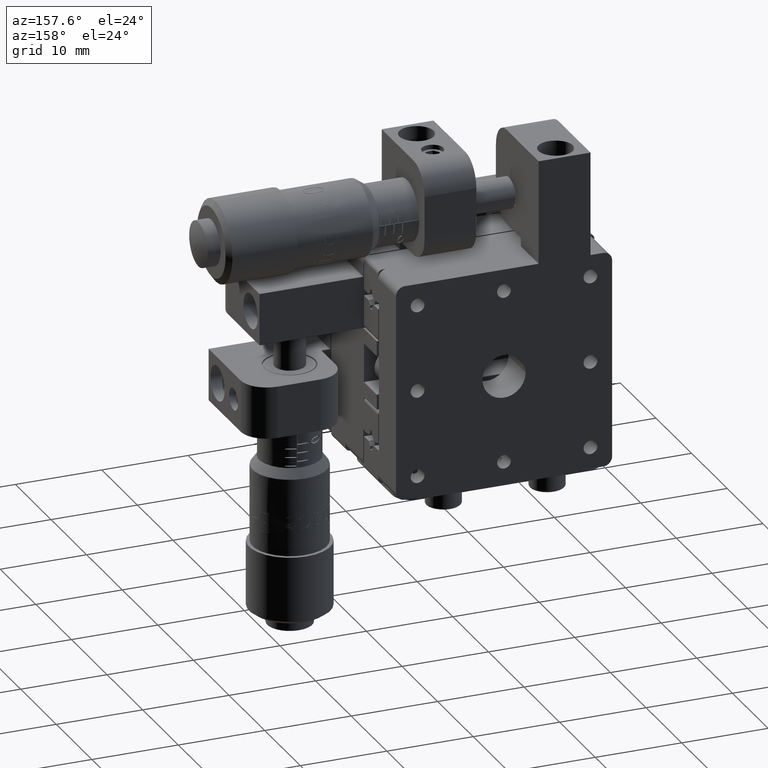
[diagram: clean part render]
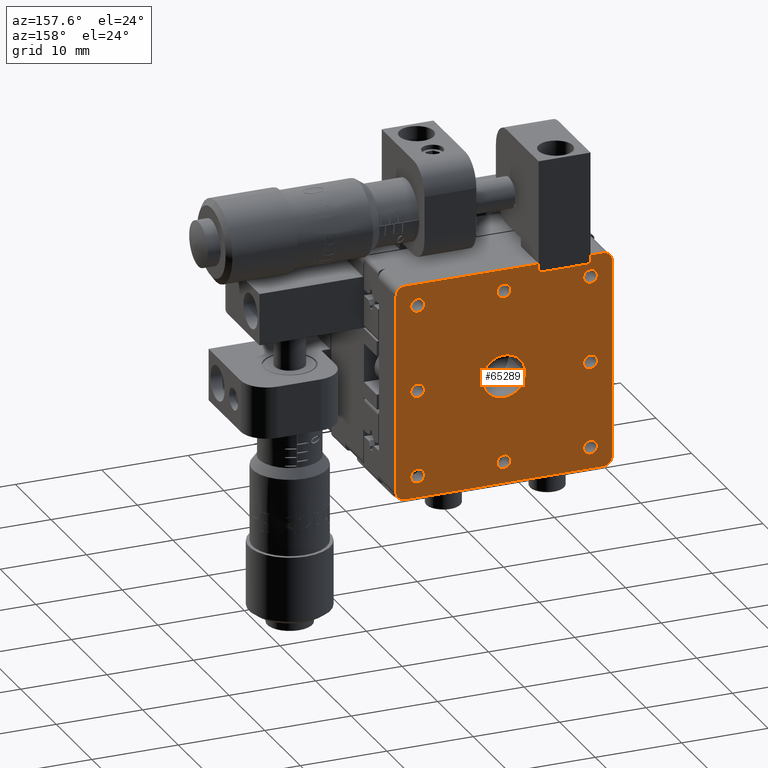
[diagram: same view with one face highlighted and labeled with its STEP entity id]
A machine part, auxiliary view. The second image highlights one B-rep face of the part: STEP entity #65289.
In plain terms, the highlighted planar face has unit normal (-0, -1, 0).
Its self-contained STEP definition (entity closure, byte-faithful):
#480 = EDGE_CURVE ( 'NONE', #8379, #82890, #28067, .T. ) ;
#663 = ORIENTED_EDGE ( 'NONE', *, *, #17756, .F. ) ;
#692 = ORIENTED_EDGE ( 'NONE', *, *, #45937, .T. ) ;
#1203 = VERTEX_POINT ( 'NONE', #20748 ) ;
#1381 = AXIS2_PLACEMENT_3D ( 'NONE', #19761, #49989, #72321 ) ;
#1960 = DIRECTION ( 'NONE',  ( 1.266761830690952200E-015, 1.000000000000000000, -5.856618871675886000E-016 ) ) ;
#2102 = EDGE_LOOP ( 'NONE', ( #3716, #4682 ) ) ;
#3153 = VERTEX_POINT ( 'NONE', #63412 ) ;
#3515 = FACE_BOUND ( 'NONE', #36954, .T. ) ;
#3716 = ORIENTED_EDGE ( 'NONE', *, *, #68880, .F. ) ;
#4682 = ORIENTED_EDGE ( 'NONE', *, *, #85844, .F. ) ;
#4760 = DIRECTION ( 'NONE',  ( -1.000000000000000000, 1.387778780781452200E-015, 3.330669073875463200E-016 ) ) ;
#5382 = DIRECTION ( 'NONE',  ( 1.266761830690952200E-015, 1.000000000000000000, -4.468840090894440300E-016 ) ) ;
#5793 = AXIS2_PLACEMENT_3D ( 'NONE', #29130, #21359, #87868 ) ;
#5966 = VERTEX_POINT ( 'NONE', #18501 ) ;
#6098 = VERTEX_POINT ( 'NONE', #78836 ) ;
#6133 = CARTESIAN_POINT ( 'NONE',  ( 2.500000000000056400, 14.39999999999997500, -3.431156557733987300E-014 ) ) ;
#6304 = DIRECTION ( 'NONE',  ( -1.000000000000000000, 2.168404344971007700E-015, 0.0000000000000000000 ) ) ;
#6903 = EDGE_CURVE ( 'NONE', #30957, #19025, #8308, .T. ) ;
#7017 = VERTEX_POINT ( 'NONE', #25409 ) ;
#7456 = VECTOR ( 'NONE', #35471, 1000.000000000000000 ) ;
#8308 = CIRCLE ( 'NONE', #43811, 0.8000000000000003800 ) ;
#8326 = EDGE_LOOP ( 'NONE', ( #36783, #29440 ) ) ;
#8379 = VERTEX_POINT ( 'NONE', #74443 ) ;
#9285 = FACE_OUTER_BOUND ( 'NONE', #31082, .T. ) ;
#9482 = EDGE_CURVE ( 'NONE', #19025, #30957, #34365, .T. ) ;
#10459 = ORIENTED_EDGE ( 'NONE', *, *, #52704, .F. ) ;
#10601 = VECTOR ( 'NONE', #30472, 1000.000000000000000 ) ;
#12011 = DIRECTION ( 'NONE',  ( -1.000000000000000000, 2.168404344971007700E-015, 3.330669073875486400E-016 ) ) ;
#12104 = CARTESIAN_POINT ( 'NONE',  ( 7.154970399973311100E-014, 14.39999999999998300, 9.999999999999964500 ) ) ;
#12774 = CARTESIAN_POINT ( 'NONE',  ( -0.7999999999999287700, 14.39999999999998400, 9.999999999999964500 ) ) ;
#12903 = CARTESIAN_POINT ( 'NONE',  ( 6.488836585198218400E-014, 14.39999999999997200, -10.00000000000003700 ) ) ;
#12938 = CARTESIAN_POINT ( 'NONE',  ( -12.49999999999993400, 14.39999999999998600, -11.50000000000004600 ) ) ;
#13453 = DIRECTION ( 'NONE',  ( 1.266761830690952200E-015, 1.000000000000000000, -5.856618871675886000E-016 ) ) ;
#13845 = CIRCLE ( 'NONE', #54011, 0.8000000000000003800 ) ;
#14268 = CARTESIAN_POINT ( 'NONE',  ( 7.154970399973311100E-014, 14.39999999999998300, 9.999999999999964500 ) ) ;
#14613 = ORIENTED_EDGE ( 'NONE', *, *, #16956, .T. ) ;
#14866 = LINE ( 'NONE', #46117, #81086 ) ;
#15363 = CARTESIAN_POINT ( 'NONE',  ( 0.8000000000000652100, 14.39999999999997000, -10.00000000000003700 ) ) ;
#16043 = AXIS2_PLACEMENT_3D ( 'NONE', #91599, #1960, #90945 ) ;
#16646 = CARTESIAN_POINT ( 'NONE',  ( -0.7999999999999355400, 14.39999999999997400, -10.00000000000003700 ) ) ;
#16956 = EDGE_CURVE ( 'NONE', #60566, #65199, #14866, .T. ) ;
#17121 = CARTESIAN_POINT ( 'NONE',  ( 12.50000000000007300, 14.39999999999996800, 12.49999999999995900 ) ) ;
#17696 = DIRECTION ( 'NONE',  ( -1.000000000000000000, 2.168404344971007700E-015, 0.0000000000000000000 ) ) ;
#17756 = EDGE_CURVE ( 'NONE', #5966, #39799, #29583, .T. ) ;
#17791 = CARTESIAN_POINT ( 'NONE',  ( 10.80000000000006800, 14.39999999999996300, -3.901893434048831100E-014 ) ) ;
#18007 = AXIS2_PLACEMENT_3D ( 'NONE', #35137, #64586, #56873 ) ;
#18367 = EDGE_CURVE ( 'NONE', #54488, #7017, #94529, .T. ) ;
#18501 = CARTESIAN_POINT ( 'NONE',  ( 9.200000000000063200, 14.39999999999996100, -10.00000000000004100 ) ) ;
#18522 = CIRCLE ( 'NONE', #62085, 0.8000000000000003800 ) ;
#18634 = FACE_BOUND ( 'NONE', #2102, .T. ) ;
#18726 = CIRCLE ( 'NONE', #20964, 0.8000000000000003800 ) ;
#19025 = VERTEX_POINT ( 'NONE', #22961 ) ;
#19128 = CARTESIAN_POINT ( 'NONE',  ( 10.00000000000007100, 14.39999999999995800, 9.999999999999960900 ) ) ;
#19405 = CARTESIAN_POINT ( 'NONE',  ( 10.00000000000007100, 14.39999999999995800, 9.999999999999960900 ) ) ;
#19761 = CARTESIAN_POINT ( 'NONE',  ( -12.49999999999992700, 14.40000000000000400, 12.49999999999995400 ) ) ;
#20237 = VERTEX_POINT ( 'NONE', #20636 ) ;
#20557 = ORIENTED_EDGE ( 'NONE', *, *, #40847, .T. ) ;
#20636 = CARTESIAN_POINT ( 'NONE',  ( -10.79999999999993300, 14.39999999999999100, -3.299518250666380900E-014 ) ) ;
#20668 = CARTESIAN_POINT ( 'NONE',  ( 10.00000000000006400, 14.39999999999995900, -10.00000000000004100 ) ) ;
#20748 = CARTESIAN_POINT ( 'NONE',  ( -9.199999999999928200, 14.39999999999999500, 9.999999999999968000 ) ) ;
#20964 = AXIS2_PLACEMENT_3D ( 'NONE', #40525, #24638, #84024 ) ;
#20988 = DIRECTION ( 'NONE',  ( -1.000000000000000000, 2.168404344971007700E-015, 0.0000000000000000000 ) ) ;
#21336 = DIRECTION ( 'NONE',  ( 3.330669073875468100E-016, 4.468840090894436400E-016, 1.000000000000000000 ) ) ;
#21359 = DIRECTION ( 'NONE',  ( 1.266761830690952200E-015, 1.000000000000000000, -4.468840090894440300E-016 ) ) ;
#21369 = CARTESIAN_POINT ( 'NONE',  ( -9.999999999999928900, 14.39999999999999700, 9.999999999999968000 ) ) ;
#21616 = EDGE_CURVE ( 'NONE', #51910, #3153, #18726, .T. ) ;
#22191 = ORIENTED_EDGE ( 'NONE', *, *, #69908, .F. ) ;
#22764 = DIRECTION ( 'NONE',  ( 1.000000000000000000, -1.266761830690952400E-015, -3.330669073875462700E-016 ) ) ;
#22961 = CARTESIAN_POINT ( 'NONE',  ( 9.200000000000066800, 14.39999999999996700, -3.965652065441469800E-014 ) ) ;
#23878 = EDGE_CURVE ( 'NONE', #3153, #51910, #78786, .T. ) ;
#23930 = CIRCLE ( 'NONE', #57553, 0.8000000000000003800 ) ;
#24115 = VECTOR ( 'NONE', #21336, 1000.000000000000000 ) ;
#24638 = DIRECTION ( 'NONE',  ( 1.266761830690952200E-015, 1.000000000000000000, -4.468840090894440300E-016 ) ) ;
#24728 = EDGE_CURVE ( 'NONE', #90388, #69052, #34585, .T. ) ;
#25409 = CARTESIAN_POINT ( 'NONE',  ( -2.499999999999920100, 14.39999999999998300, -3.402491436200364500E-014 ) ) ;
#25646 = CARTESIAN_POINT ( 'NONE',  ( 11.50000000000007300, 14.39999999999997000, 12.49999999999995900 ) ) ;
#25987 = EDGE_CURVE ( 'NONE', #36078, #92932, #72660, .T. ) ;
#26100 = VERTEX_POINT ( 'NONE', #72772 ) ;
#27092 = ORIENTED_EDGE ( 'NONE', *, *, #62847, .T. ) ;
#27602 = CARTESIAN_POINT ( 'NONE',  ( -11.49999999999993400, 14.39999999999998600, -11.50000000000003400 ) ) ;
#27929 = DIRECTION ( 'NONE',  ( 1.266761830690952200E-015, 1.000000000000000000, -5.856618871675886000E-016 ) ) ;
#28067 = LINE ( 'NONE', #36060, #64067 ) ;
#28696 = EDGE_CURVE ( 'NONE', #65199, #37930, #54715, .T. ) ;
#29130 = CARTESIAN_POINT ( 'NONE',  ( -9.999999999999936100, 14.39999999999999700, -10.00000000000003400 ) ) ;
#29440 = ORIENTED_EDGE ( 'NONE', *, *, #80627, .F. ) ;
#29583 = CIRCLE ( 'NONE', #41282, 0.8000000000000003800 ) ;
#29910 = DIRECTION ( 'NONE',  ( 1.266761830690952200E-015, 1.000000000000000000, -4.468840090894440300E-016 ) ) ;
#30472 = DIRECTION ( 'NONE',  ( -3.330669073875470100E-016, -5.856618871675882000E-016, -1.000000000000000000 ) ) ;
#30884 = DIRECTION ( 'NONE',  ( 3.330669073875468100E-016, 4.468840090894436400E-016, 1.000000000000000000 ) ) ;
#30957 = VERTEX_POINT ( 'NONE', #17791 ) ;
#31082 = EDGE_LOOP ( 'NONE', ( #87473, #45806, #58543, #20557, #14613, #83478, #61650, #55159, #71854, #692, #72775, #27092 ) ) ;
#31387 = FACE_BOUND ( 'NONE', #36688, .T. ) ;
#31476 = CIRCLE ( 'NONE', #46216, 0.8000000000000003800 ) ;
#31499 = CARTESIAN_POINT ( 'NONE',  ( 12.50000000000007300, 14.39999999999996800, 11.49999999999995700 ) ) ;
#31979 = AXIS2_PLACEMENT_3D ( 'NONE', #19405, #41845, #71986 ) ;
#32055 = LINE ( 'NONE', #94820, #44809 ) ;
#32580 = DIRECTION ( 'NONE',  ( -1.000000000000000000, 2.168404344971007700E-015, 3.330669073875486400E-016 ) ) ;
#33157 = CARTESIAN_POINT ( 'NONE',  ( -9.999999999999928900, 14.39999999999999700, 11.49999999999996400 ) ) ;
#33775 = VERTEX_POINT ( 'NONE', #67718 ) ;
#33898 = CARTESIAN_POINT ( 'NONE',  ( -12.49999999999992700, 14.40000000000000400, 12.49999999999995400 ) ) ;
#34098 = CARTESIAN_POINT ( 'NONE',  ( -9.999999999999932500, 14.39999999999999000, -3.326163603257385000E-014 ) ) ;
#34312 = CARTESIAN_POINT ( 'NONE',  ( 6.821903492585765400E-014, 14.39999999999997900, -3.485758163047250600E-014 ) ) ;
#34365 = CIRCLE ( 'NONE', #71811, 0.8000000000000003800 ) ;
#34383 = PLANE ( 'NONE',  #1381 ) ;
#34585 = LINE ( 'NONE', #95975, #24115 ) ;
#34673 = CARTESIAN_POINT ( 'NONE',  ( 10.80000000000006500, 14.39999999999995800, -10.00000000000004100 ) ) ;
#35137 = CARTESIAN_POINT ( 'NONE',  ( 11.50000000000006600, 14.39999999999995400, -11.50000000000004100 ) ) ;
#35281 = EDGE_CURVE ( 'NONE', #6098, #90388, #85353, .T. ) ;
#35471 = DIRECTION ( 'NONE',  ( -1.000000000000000000, 1.266761830690952400E-015, 3.330669073875462700E-016 ) ) ;
#36060 = CARTESIAN_POINT ( 'NONE',  ( -12.49999999999992700, 14.40000000000000400, 12.49999999999995400 ) ) ;
#36078 = VERTEX_POINT ( 'NONE', #16646 ) ;
#36688 = EDGE_LOOP ( 'NONE', ( #57073, #10459 ) ) ;
#36783 = ORIENTED_EDGE ( 'NONE', *, *, #46662, .F. ) ;
#36846 = CARTESIAN_POINT ( 'NONE',  ( 10.00000000000006400, 14.39999999999995900, -10.00000000000004100 ) ) ;
#36954 = EDGE_LOOP ( 'NONE', ( #663, #91907 ) ) ;
#37337 = DIRECTION ( 'NONE',  ( 1.266761830690952200E-015, 1.000000000000000000, -4.468840090894440300E-016 ) ) ;
#37550 = CIRCLE ( 'NONE', #38251, 0.8000000000000003800 ) ;
#37868 = LINE ( 'NONE', #53931, #79677 ) ;
#37930 = VERTEX_POINT ( 'NONE', #31499 ) ;
#38251 = AXIS2_PLACEMENT_3D ( 'NONE', #14268, #37337, #66489 ) ;
#38750 = CARTESIAN_POINT ( 'NONE',  ( 10.00000000000006800, 14.39999999999996500, -3.992297418032473900E-014 ) ) ;
#39208 = CARTESIAN_POINT ( 'NONE',  ( -9.199999999999931800, 14.39999999999998800, -3.235759619273742900E-014 ) ) ;
#39799 = VERTEX_POINT ( 'NONE', #34673 ) ;
#40525 = CARTESIAN_POINT ( 'NONE',  ( -9.999999999999936100, 14.39999999999999700, -10.00000000000003400 ) ) ;
#40710 = ORIENTED_EDGE ( 'NONE', *, *, #21616, .F. ) ;
#40847 = EDGE_CURVE ( 'NONE', #6098, #60566, #37868, .T. ) ;
#41282 = AXIS2_PLACEMENT_3D ( 'NONE', #20668, #94676, #79719 ) ;
#41665 = DIRECTION ( 'NONE',  ( 1.266761830690952200E-015, 1.000000000000000000, -4.468840090894440300E-016 ) ) ;
#41845 = DIRECTION ( 'NONE',  ( 1.266761830690952200E-015, 1.000000000000000000, -4.468840090894440300E-016 ) ) ;
#43099 = AXIS2_PLACEMENT_3D ( 'NONE', #27602, #27929, #49707 ) ;
#43811 = AXIS2_PLACEMENT_3D ( 'NONE', #38750, #47510, #32580 ) ;
#44809 = VECTOR ( 'NONE', #95155, 1000.000000000000000 ) ;
#45358 = DIRECTION ( 'NONE',  ( 1.266761830690952200E-015, 1.000000000000000000, -4.468840090894440300E-016 ) ) ;
#45806 = ORIENTED_EDGE ( 'NONE', *, *, #24728, .F. ) ;
#45937 = EDGE_CURVE ( 'NONE', #26100, #82890, #76826, .T. ) ;
#46117 = CARTESIAN_POINT ( 'NONE',  ( -12.49999999999992700, 14.40000000000000400, 12.49999999999995400 ) ) ;
#46138 = EDGE_CURVE ( 'NONE', #37930, #65127, #90814, .T. ) ;
#46216 = AXIS2_PLACEMENT_3D ( 'NONE', #53616, #85065, #48391 ) ;
#46662 = EDGE_CURVE ( 'NONE', #20237, #55340, #31476, .T. ) ;
#46739 = EDGE_LOOP ( 'NONE', ( #40710, #56673 ) ) ;
#46761 = CARTESIAN_POINT ( 'NONE',  ( 12.50000000000006800, 14.39999999999995400, -11.50000000000004100 ) ) ;
#47141 = ORIENTED_EDGE ( 'NONE', *, *, #59492, .F. ) ;
#47259 = DIRECTION ( 'NONE',  ( 1.266761830690952200E-015, 1.000000000000000000, -4.468840090894440300E-016 ) ) ;
#47309 = CIRCLE ( 'NONE', #69621, 0.8000000000000003800 ) ;
#47510 = DIRECTION ( 'NONE',  ( 1.266761830690952200E-015, 1.000000000000000000, -4.468840090894440300E-016 ) ) ;
#47586 = CARTESIAN_POINT ( 'NONE',  ( -10.79999999999993700, 14.39999999999999900, -10.00000000000003400 ) ) ;
#48391 = DIRECTION ( 'NONE',  ( -1.000000000000000000, 2.168404344971007700E-015, 3.330669073875486400E-016 ) ) ;
#49221 = VECTOR ( 'NONE', #85798, 1000.000000000000000 ) ;
#49707 = DIRECTION ( 'NONE',  ( 0.0000000000000000000, 0.0000000000000000000, 1.000000000000000000 ) ) ;
#49989 = DIRECTION ( 'NONE',  ( -1.266761830690952200E-015, -1.000000000000000000, 5.856618871675886000E-016 ) ) ;
#51178 = ORIENTED_EDGE ( 'NONE', *, *, #18367, .F. ) ;
#51340 = DIRECTION ( 'NONE',  ( -1.000000000000000000, 2.168404344971007700E-015, 3.330669073875486400E-016 ) ) ;
#51586 = AXIS2_PLACEMENT_3D ( 'NONE', #34312, #55741, #4760 ) ;
#51747 = EDGE_LOOP ( 'NONE', ( #56460, #51178 ) ) ;
#51910 = VERTEX_POINT ( 'NONE', #47586 ) ;
#52299 = CARTESIAN_POINT ( 'NONE',  ( 10.00000000000006800, 14.39999999999996500, -3.992297418032473900E-014 ) ) ;
#52704 = EDGE_CURVE ( 'NONE', #92932, #36078, #60760, .T. ) ;
#52719 = AXIS2_PLACEMENT_3D ( 'NONE', #12903, #5382, #20988 ) ;
#53616 = CARTESIAN_POINT ( 'NONE',  ( -9.999999999999932500, 14.39999999999999000, -3.326163603257385000E-014 ) ) ;
#53931 = CARTESIAN_POINT ( 'NONE',  ( -3.999999999999928100, 14.39999999999999000, 11.49999999999996300 ) ) ;
#54011 = AXIS2_PLACEMENT_3D ( 'NONE', #12104, #41665, #93301 ) ;
#54488 = VERTEX_POINT ( 'NONE', #6133 ) ;
#54715 = CIRCLE ( 'NONE', #16043, 1.000000000000000900 ) ;
#55012 = AXIS2_PLACEMENT_3D ( 'NONE', #34098, #94165, #12011 ) ;
#55159 = ORIENTED_EDGE ( 'NONE', *, *, #74253, .T. ) ;
#55340 = VERTEX_POINT ( 'NONE', #39208 ) ;
#55741 = DIRECTION ( 'NONE',  ( 1.266761830690952200E-015, 1.000000000000000000, -4.468840090894440300E-016 ) ) ;
#56214 = AXIS2_PLACEMENT_3D ( 'NONE', #92220, #85668, #76940 ) ;
#56451 = VERTEX_POINT ( 'NONE', #77809 ) ;
#56460 = ORIENTED_EDGE ( 'NONE', *, *, #94641, .F. ) ;
#56673 = ORIENTED_EDGE ( 'NONE', *, *, #23878, .F. ) ;
#56873 = DIRECTION ( 'NONE',  ( 0.0000000000000000000, 0.0000000000000000000, 1.000000000000000000 ) ) ;
#57073 = ORIENTED_EDGE ( 'NONE', *, *, #25987, .F. ) ;
#57553 = AXIS2_PLACEMENT_3D ( 'NONE', #61201, #45358, #90797 ) ;
#57943 = VERTEX_POINT ( 'NONE', #12774 ) ;
#58354 = DIRECTION ( 'NONE',  ( -1.000000000000000000, 2.168404344971007700E-015, 0.0000000000000000000 ) ) ;
#58543 = ORIENTED_EDGE ( 'NONE', *, *, #35281, .F. ) ;
#58804 = AXIS2_PLACEMENT_3D ( 'NONE', #91742, #47259, #17696 ) ;
#59492 = EDGE_CURVE ( 'NONE', #1203, #60303, #23930, .T. ) ;
#60303 = VERTEX_POINT ( 'NONE', #64671 ) ;
#60414 = FACE_BOUND ( 'NONE', #62505, .T. ) ;
#60566 = VERTEX_POINT ( 'NONE', #92248 ) ;
#60760 = CIRCLE ( 'NONE', #52719, 0.8000000000000003800 ) ;
#61201 = CARTESIAN_POINT ( 'NONE',  ( -9.999999999999928900, 14.39999999999999700, 9.999999999999968000 ) ) ;
#61498 = EDGE_CURVE ( 'NONE', #33775, #69052, #86343, .T. ) ;
#61650 = ORIENTED_EDGE ( 'NONE', *, *, #46138, .T. ) ;
#62085 = AXIS2_PLACEMENT_3D ( 'NONE', #36846, #72841, #6304 ) ;
#62505 = EDGE_LOOP ( 'NONE', ( #72286, #67114 ) ) ;
#62615 = DIRECTION ( 'NONE',  ( -1.000000000000000000, 2.168404344971007700E-015, 0.0000000000000000000 ) ) ;
#62847 = EDGE_CURVE ( 'NONE', #8379, #33775, #91984, .T. ) ;
#62861 = VERTEX_POINT ( 'NONE', #95253 ) ;
#63412 = CARTESIAN_POINT ( 'NONE',  ( -9.199999999999935300, 14.39999999999999500, -10.00000000000003400 ) ) ;
#63852 = FACE_BOUND ( 'NONE', #66732, .T. ) ;
#63880 = VERTEX_POINT ( 'NONE', #84815 ) ;
#64067 = VECTOR ( 'NONE', #94809, 1000.000000000000000 ) ;
#64586 = DIRECTION ( 'NONE',  ( 1.266761830690952200E-015, 1.000000000000000000, -5.856618871675886000E-016 ) ) ;
#64671 = CARTESIAN_POINT ( 'NONE',  ( -10.79999999999993000, 14.39999999999999900, 9.999999999999968000 ) ) ;
#65127 = VERTEX_POINT ( 'NONE', #46761 ) ;
#65199 = VERTEX_POINT ( 'NONE', #25646 ) ;
#65289 = ADVANCED_FACE ( 'NONE', ( #3515, #31387, #83643, #80188, #18634, #63852, #60414, #88265, #70846, #9285 ), #34383, .F. ) ;
#65711 = CIRCLE ( 'NONE', #18007, 1.000000000000000900 ) ;
#66489 = DIRECTION ( 'NONE',  ( -1.000000000000000000, 2.168404344971007700E-015, 0.0000000000000000000 ) ) ;
#66732 = EDGE_LOOP ( 'NONE', ( #22191, #47141 ) ) ;
#67067 = DIRECTION ( 'NONE',  ( 1.266761830690952200E-015, 1.000000000000000000, -4.468840090894440300E-016 ) ) ;
#67114 = ORIENTED_EDGE ( 'NONE', *, *, #6903, .F. ) ;
#67576 = EDGE_CURVE ( 'NONE', #56451, #63880, #85352, .T. ) ;
#67718 = CARTESIAN_POINT ( 'NONE',  ( -11.49999999999992700, 14.40000000000001100, 12.49999999999996600 ) ) ;
#68880 = EDGE_CURVE ( 'NONE', #57943, #62861, #37550, .T. ) ;
#69052 = VERTEX_POINT ( 'NONE', #69705 ) ;
#69621 = AXIS2_PLACEMENT_3D ( 'NONE', #19128, #70707, #62615 ) ;
#69705 = CARTESIAN_POINT ( 'NONE',  ( -9.999999999999928900, 14.40000000000000000, 12.49999999999996600 ) ) ;
#69908 = EDGE_CURVE ( 'NONE', #60303, #1203, #80378, .T. ) ;
#70707 = DIRECTION ( 'NONE',  ( 1.266761830690952200E-015, 1.000000000000000000, -4.468840090894440300E-016 ) ) ;
#70846 = FACE_BOUND ( 'NONE', #51747, .T. ) ;
#71483 = AXIS2_PLACEMENT_3D ( 'NONE', #96191, #13453, #73727 ) ;
#71811 = AXIS2_PLACEMENT_3D ( 'NONE', #52299, #29910, #51340 ) ;
#71854 = ORIENTED_EDGE ( 'NONE', *, *, #74316, .F. ) ;
#71986 = DIRECTION ( 'NONE',  ( -1.000000000000000000, 2.168404344971007700E-015, 0.0000000000000000000 ) ) ;
#72127 = CARTESIAN_POINT ( 'NONE',  ( -9.999999999999928900, 14.39999999999999700, 11.49999999999996400 ) ) ;
#72286 = ORIENTED_EDGE ( 'NONE', *, *, #9482, .F. ) ;
#72321 = DIRECTION ( 'NONE',  ( 3.330669073875470100E-016, 5.856618871675882000E-016, 1.000000000000000000 ) ) ;
#72660 = CIRCLE ( 'NONE', #58804, 0.8000000000000003800 ) ;
#72772 = CARTESIAN_POINT ( 'NONE',  ( -11.49999999999996100, 14.39999999999998600, -12.50000000000003600 ) ) ;
#72775 = ORIENTED_EDGE ( 'NONE', *, *, #480, .F. ) ;
#72841 = DIRECTION ( 'NONE',  ( 1.266761830690952200E-015, 1.000000000000000000, -4.468840090894440300E-016 ) ) ;
#73006 = CIRCLE ( 'NONE', #55012, 0.8000000000000003800 ) ;
#73727 = DIRECTION ( 'NONE',  ( 1.734723475976805500E-015, 0.0000000000000000000, 1.000000000000000000 ) ) ;
#74253 = EDGE_CURVE ( 'NONE', #65127, #82801, #65711, .T. ) ;
#74316 = EDGE_CURVE ( 'NONE', #26100, #82801, #32055, .T. ) ;
#74443 = CARTESIAN_POINT ( 'NONE',  ( -12.49999999999992700, 14.40000000000000000, 11.49999999999995400 ) ) ;
#75595 = AXIS2_PLACEMENT_3D ( 'NONE', #21369, #67067, #58354 ) ;
#76826 = CIRCLE ( 'NONE', #43099, 1.000000000000000900 ) ;
#76940 = DIRECTION ( 'NONE',  ( -1.000000000000000000, 1.387778780781452200E-015, 3.330669073875463200E-016 ) ) ;
#77809 = CARTESIAN_POINT ( 'NONE',  ( 9.200000000000070300, 14.39999999999995900, 9.999999999999960900 ) ) ;
#78786 = CIRCLE ( 'NONE', #5793, 0.8000000000000003800 ) ;
#78836 = CARTESIAN_POINT ( 'NONE',  ( -3.999999999999928100, 14.39999999999999000, 11.49999999999996300 ) ) ;
#79677 = VECTOR ( 'NONE', #30884, 1000.000000000000000 ) ;
#79719 = DIRECTION ( 'NONE',  ( -1.000000000000000000, 2.168404344971007700E-015, 0.0000000000000000000 ) ) ;
#80188 = FACE_BOUND ( 'NONE', #8326, .T. ) ;
#80378 = CIRCLE ( 'NONE', #75595, 0.8000000000000003800 ) ;
#80627 = EDGE_CURVE ( 'NONE', #55340, #20237, #73006, .T. ) ;
#81086 = VECTOR ( 'NONE', #22764, 1000.000000000000000 ) ;
#81277 = CIRCLE ( 'NONE', #51586, 2.499999999999988500 ) ;
#82801 = VERTEX_POINT ( 'NONE', #91852 ) ;
#82890 = VERTEX_POINT ( 'NONE', #12938 ) ;
#83478 = ORIENTED_EDGE ( 'NONE', *, *, #28696, .T. ) ;
#83643 = FACE_BOUND ( 'NONE', #46739, .T. ) ;
#84024 = DIRECTION ( 'NONE',  ( -1.000000000000000000, 2.168404344971007700E-015, 0.0000000000000000000 ) ) ;
#84815 = CARTESIAN_POINT ( 'NONE',  ( 10.80000000000007200, 14.39999999999995600, 9.999999999999960900 ) ) ;
#85065 = DIRECTION ( 'NONE',  ( 1.266761830690952200E-015, 1.000000000000000000, -4.468840090894440300E-016 ) ) ;
#85352 = CIRCLE ( 'NONE', #31979, 0.8000000000000003800 ) ;
#85353 = LINE ( 'NONE', #72127, #7456 ) ;
#85528 = EDGE_CURVE ( 'NONE', #39799, #5966, #18522, .T. ) ;
#85668 = DIRECTION ( 'NONE',  ( 1.266761830690952200E-015, 1.000000000000000000, -4.468840090894440300E-016 ) ) ;
#85798 = DIRECTION ( 'NONE',  ( 1.000000000000000000, -1.266761830690952400E-015, -3.330669073875462700E-016 ) ) ;
#85844 = EDGE_CURVE ( 'NONE', #62861, #57943, #13845, .T. ) ;
#86343 = LINE ( 'NONE', #33898, #49221 ) ;
#87227 = EDGE_CURVE ( 'NONE', #63880, #56451, #47309, .T. ) ;
#87473 = ORIENTED_EDGE ( 'NONE', *, *, #61498, .T. ) ;
#87868 = DIRECTION ( 'NONE',  ( -1.000000000000000000, 2.168404344971007700E-015, 0.0000000000000000000 ) ) ;
#88265 = FACE_BOUND ( 'NONE', #94486, .T. ) ;
#90082 = ORIENTED_EDGE ( 'NONE', *, *, #87227, .F. ) ;
#90388 = VERTEX_POINT ( 'NONE', #33157 ) ;
#90797 = DIRECTION ( 'NONE',  ( -1.000000000000000000, 2.168404344971007700E-015, 0.0000000000000000000 ) ) ;
#90814 = LINE ( 'NONE', #17121, #10601 ) ;
#90945 = DIRECTION ( 'NONE',  ( 0.0000000000000000000, 0.0000000000000000000, 1.000000000000000000 ) ) ;
#91599 = CARTESIAN_POINT ( 'NONE',  ( 11.50000000000007300, 14.39999999999996800, 11.49999999999995700 ) ) ;
#91709 = ORIENTED_EDGE ( 'NONE', *, *, #67576, .F. ) ;
#91742 = CARTESIAN_POINT ( 'NONE',  ( 6.488836585198218400E-014, 14.39999999999997200, -10.00000000000003700 ) ) ;
#91852 = CARTESIAN_POINT ( 'NONE',  ( 11.50000000000003700, 14.39999999999994200, -12.50000000000004300 ) ) ;
#91907 = ORIENTED_EDGE ( 'NONE', *, *, #85528, .F. ) ;
#91984 = CIRCLE ( 'NONE', #71483, 1.000000000000000900 ) ;
#92220 = CARTESIAN_POINT ( 'NONE',  ( 6.821903492585765400E-014, 14.39999999999997900, -3.485758163047250600E-014 ) ) ;
#92248 = CARTESIAN_POINT ( 'NONE',  ( -3.999999999999934300, 14.39999999999999000, 12.49999999999996400 ) ) ;
#92932 = VERTEX_POINT ( 'NONE', #15363 ) ;
#93301 = DIRECTION ( 'NONE',  ( -1.000000000000000000, 2.168404344971007700E-015, 0.0000000000000000000 ) ) ;
#94165 = DIRECTION ( 'NONE',  ( 1.266761830690952200E-015, 1.000000000000000000, -4.468840090894440300E-016 ) ) ;
#94486 = EDGE_LOOP ( 'NONE', ( #91709, #90082 ) ) ;
#94529 = CIRCLE ( 'NONE', #56214, 2.499999999999988500 ) ;
#94641 = EDGE_CURVE ( 'NONE', #7017, #54488, #81277, .T. ) ;
#94676 = DIRECTION ( 'NONE',  ( 1.266761830690952200E-015, 1.000000000000000000, -4.468840090894440300E-016 ) ) ;
#94809 = DIRECTION ( 'NONE',  ( -3.330669073875470100E-016, -5.856618871675882000E-016, -1.000000000000000000 ) ) ;
#94820 = CARTESIAN_POINT ( 'NONE',  ( -12.49999999999996300, 14.39999999999998600, -12.50000000000004800 ) ) ;
#95155 = DIRECTION ( 'NONE',  ( 1.000000000000000000, -1.266761830690952400E-015, -3.330669073875462700E-016 ) ) ;
#95253 = CARTESIAN_POINT ( 'NONE',  ( 0.8000000000000718800, 14.39999999999998100, 9.999999999999964500 ) ) ;
#95975 = CARTESIAN_POINT ( 'NONE',  ( -9.999999999999928900, 14.39999999999999700, 11.49999999999996400 ) ) ;
#96191 = CARTESIAN_POINT ( 'NONE',  ( -11.49999999999992700, 14.40000000000000000, 11.49999999999996400 ) ) ;